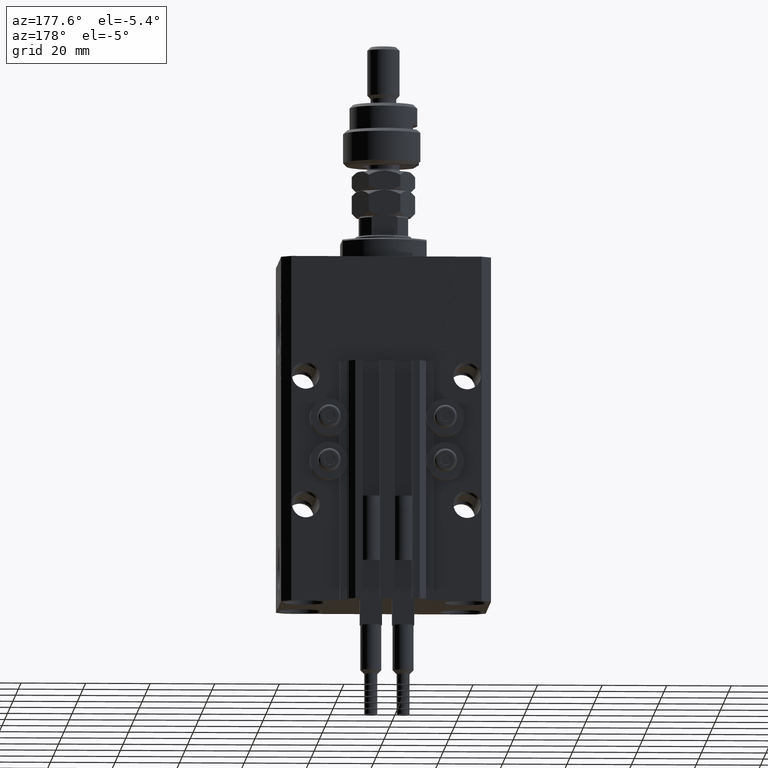
[diagram: clean part render]
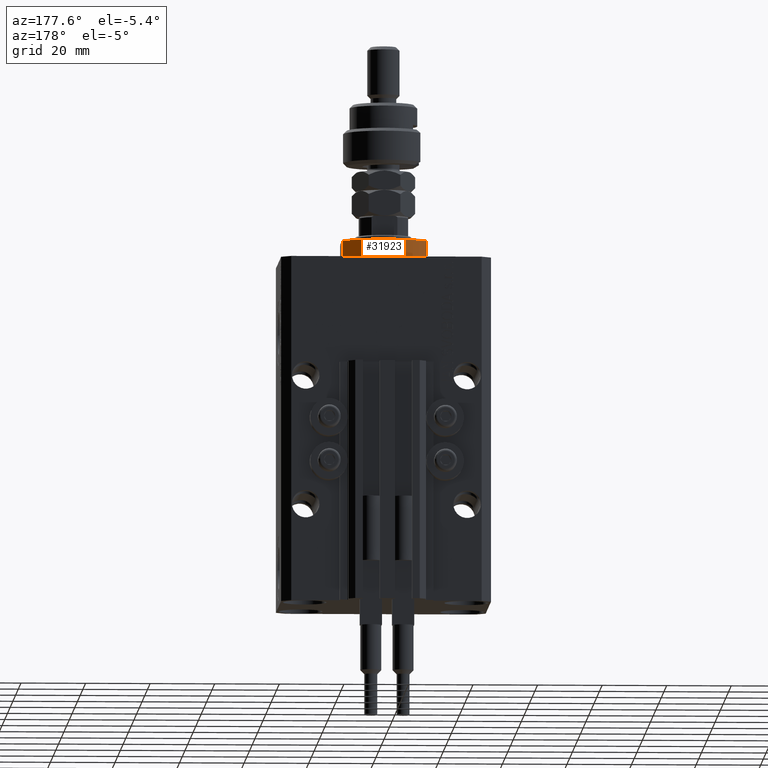
[diagram: same view with one face highlighted and labeled with its STEP entity id]
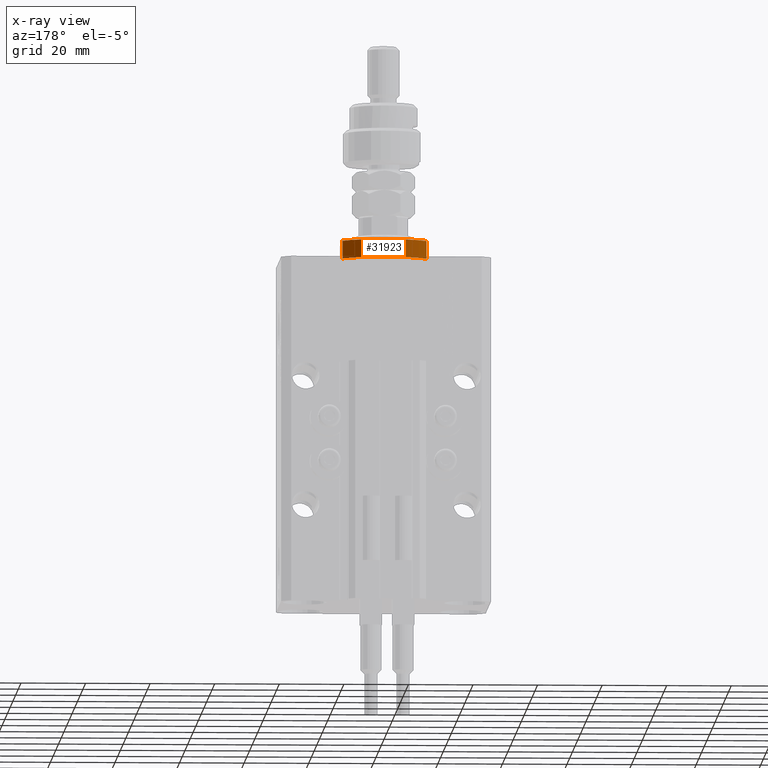
[diagram: x-ray of the same camera — body ghosted, the highlighted face saturated]
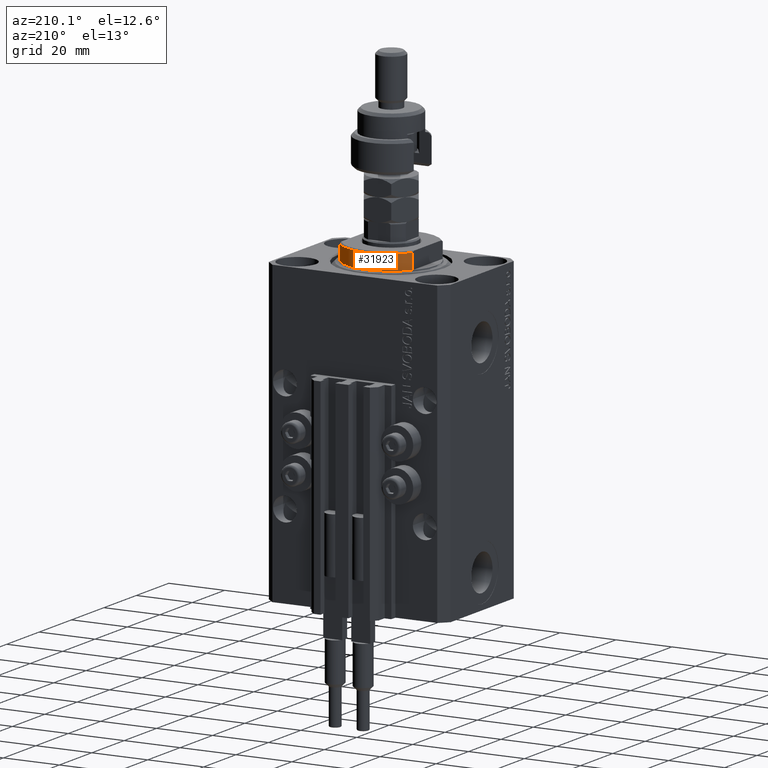
[diagram: same view with one face highlighted and labeled with its STEP entity id]
A machine part, auxiliary view. The second image highlights one B-rep face of the part: STEP entity #31923.
The next image is the same camera in x-ray: the body ghosted, the highlighted face saturated — about 0% of this face is hidden behind the body in this view.
A second angle (auxiliary view) of the same face is appended — the face is thin or edge-on in the first view.
In plain terms, the highlighted cylindrical surface (partial cylindrical patch) has radius 16 mm, axis along (0, 0, -1).
Its self-contained STEP definition (entity closure, byte-faithful):
#928 = DIRECTION ( 'NONE',  ( 0.000000000000000000, 0.000000000000000000, 1.000000000000000000 ) ) ;
#2156 = CARTESIAN_POINT ( 'NONE',  ( 0.000000000000000000, 0.000000000000000000, -0.4999999999999995559 ) ) ;
#2516 = DIRECTION ( 'NONE',  ( -0.000000000000000000, -0.000000000000000000, 1.000000000000000000 ) ) ;
#4504 = CARTESIAN_POINT ( 'NONE',  ( 13.00000000000000000, 9.327379053088916905, -6.000000000000014211 ) ) ;
#6350 = DIRECTION ( 'NONE',  ( 1.000000000000000000, -8.881784197001252323E-16, 0.000000000000000000 ) ) ;
#6968 = CYLINDRICAL_SURFACE ( 'NONE', #16342, 16.00000000000000000 ) ;
#6993 = VERTEX_POINT ( 'NONE', #9742 ) ;
#7040 = LINE ( 'NONE', #23062, #8737 ) ;
#8737 = VECTOR ( 'NONE', #39068, 1000.000000000000000 ) ;
#9677 = CIRCLE ( 'NONE', #50721, 16.00000000000000000 ) ;
#9742 = CARTESIAN_POINT ( 'NONE',  ( -13.00000000000000000, 9.327379053088815652, -0.4999999999999995559 ) ) ;
#9986 = VERTEX_POINT ( 'NONE', #34043 ) ;
#12731 = DIRECTION ( 'NONE',  ( -1.000000000000000000, 0.000000000000000000, 0.000000000000000000 ) ) ;
#14605 = ORIENTED_EDGE ( 'NONE', *, *, #15696, .T. ) ;
#15267 = EDGE_CURVE ( 'NONE', #46156, #44340, #38089, .T. ) ;
#15696 = EDGE_CURVE ( 'NONE', #9986, #6993, #7040, .T. ) ;
#16342 = AXIS2_PLACEMENT_3D ( 'NONE', #35546, #2516, #26895 ) ;
#16692 = CARTESIAN_POINT ( 'NONE',  ( 0.000000000000000000, 0.000000000000000000, -6.000000000000023981 ) ) ;
#19200 = DIRECTION ( 'NONE',  ( -0.000000000000000000, -0.000000000000000000, -1.000000000000000000 ) ) ;
#19998 = CARTESIAN_POINT ( 'NONE',  ( 13.00000000000000000, 9.327379053088815652, -0.4999999999999995559 ) ) ;
#22360 = CARTESIAN_POINT ( 'NONE',  ( 13.00000000000000000, 9.327379053088813876, -6.500000000000000000 ) ) ;
#22992 = VECTOR ( 'NONE', #41494, 1000.000000000000000 ) ;
#23062 = CARTESIAN_POINT ( 'NONE',  ( -13.00000000000000000, 9.327379053088813876, -6.500000000000000000 ) ) ;
#25789 = EDGE_CURVE ( 'NONE', #46156, #9986, #31120, .T. ) ;
#26895 = DIRECTION ( 'NONE',  ( 1.000000000000000000, 0.000000000000000000, 0.000000000000000000 ) ) ;
#27670 = ORIENTED_EDGE ( 'NONE', *, *, #25789, .T. ) ;
#29627 = EDGE_LOOP ( 'NONE', ( #42605, #27670, #14605, #49622 ) ) ;
#31120 = CIRCLE ( 'NONE', #41172, 16.00000000000000000 ) ;
#31923 = ADVANCED_FACE ( 'NONE', ( #47339 ), #6968, .T. ) ;
#33102 = EDGE_CURVE ( 'NONE', #6993, #44340, #9677, .T. ) ;
#34043 = CARTESIAN_POINT ( 'NONE',  ( -13.00000000000000000, 9.327379053088916905, -6.000000000000014211 ) ) ;
#35546 = CARTESIAN_POINT ( 'NONE',  ( 0.000000000000000000, 0.000000000000000000, -6.500000000000000000 ) ) ;
#38089 = LINE ( 'NONE', #22360, #22992 ) ;
#39068 = DIRECTION ( 'NONE',  ( -0.000000000000000000, -0.000000000000000000, 1.000000000000000000 ) ) ;
#41172 = AXIS2_PLACEMENT_3D ( 'NONE', #16692, #928, #12731 ) ;
#41494 = DIRECTION ( 'NONE',  ( -0.000000000000000000, -0.000000000000000000, 1.000000000000000000 ) ) ;
#42605 = ORIENTED_EDGE ( 'NONE', *, *, #15267, .F. ) ;
#44340 = VERTEX_POINT ( 'NONE', #19998 ) ;
#46156 = VERTEX_POINT ( 'NONE', #4504 ) ;
#47339 = FACE_OUTER_BOUND ( 'NONE', #29627, .T. ) ;
#49622 = ORIENTED_EDGE ( 'NONE', *, *, #33102, .T. ) ;
#50721 = AXIS2_PLACEMENT_3D ( 'NONE', #2156, #19200, #6350 ) ;